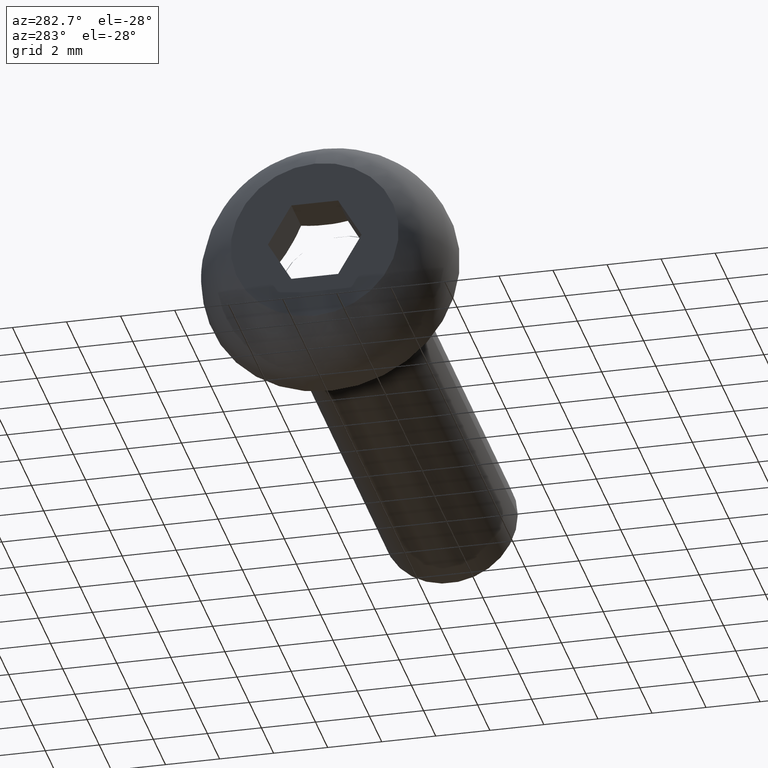
[diagram: clean part render]
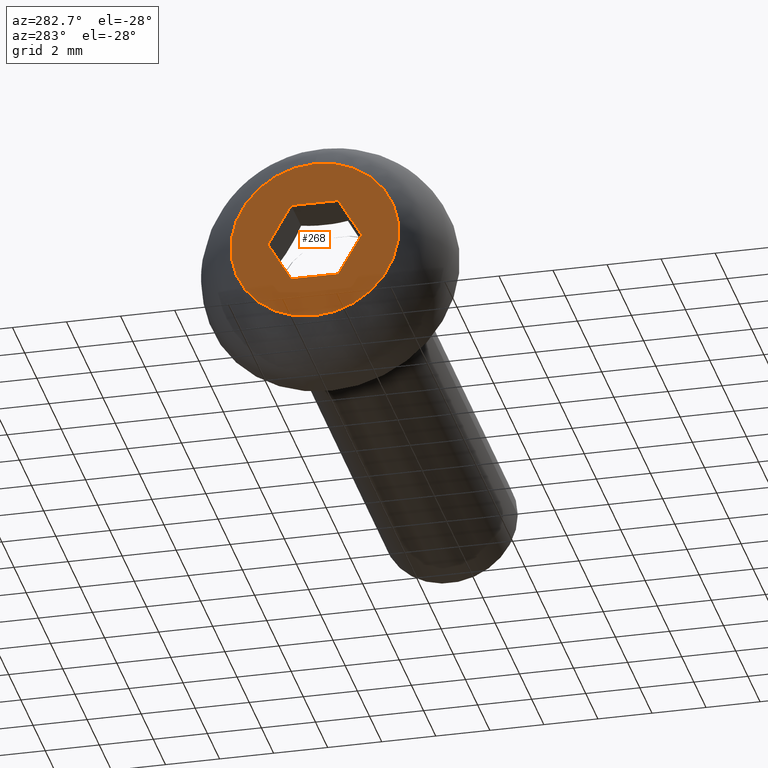
[diagram: same view with one face highlighted and labeled with its STEP entity id]
A machine part, auxiliary view. The second image highlights one B-rep face of the part: STEP entity #268.
In plain terms, the highlighted planar face has unit normal (-1, -0, 0).
Its self-contained STEP definition (entity closure, byte-faithful):
#23=FACE_BOUND('',#73,.T.);
#26=CIRCLE('',#300,3.10929276087974);
#53=FACE_OUTER_BOUND('',#72,.T.);
#72=EDGE_LOOP('',(#235));
#73=EDGE_LOOP('',(#236,#237,#238,#239,#240,#241));
#75=LINE('',#405,#92);
#78=LINE('',#414,#95);
#79=LINE('',#421,#96);
#82=LINE('',#430,#99);
#83=LINE('',#437,#100);
#85=LINE('',#443,#102);
#92=VECTOR('',#325,10.);
#95=VECTOR('',#330,10.);
#96=VECTOR('',#333,10.);
#99=VECTOR('',#338,10.);
#100=VECTOR('',#341,10.);
#102=VECTOR('',#345,10.);
#116=VERTEX_POINT('',#402);
#117=VERTEX_POINT('',#404);
#119=VERTEX_POINT('',#412);
#121=VERTEX_POINT('',#420);
#123=VERTEX_POINT('',#428);
#125=VERTEX_POINT('',#436);
#127=VERTEX_POINT('',#473);
#139=EDGE_CURVE('',#117,#116,#75,.T.);
#143=EDGE_CURVE('',#116,#119,#78,.T.);
#145=EDGE_CURVE('',#121,#117,#79,.T.);
#149=EDGE_CURVE('',#119,#123,#82,.T.);
#151=EDGE_CURVE('',#125,#121,#83,.T.);
#154=EDGE_CURVE('',#123,#125,#85,.T.);
#157=EDGE_CURVE('',#127,#127,#26,.T.);
#235=ORIENTED_EDGE('',*,*,#157,.F.);
#236=ORIENTED_EDGE('',*,*,#154,.T.);
#237=ORIENTED_EDGE('',*,*,#151,.T.);
#238=ORIENTED_EDGE('',*,*,#145,.T.);
#239=ORIENTED_EDGE('',*,*,#139,.T.);
#240=ORIENTED_EDGE('',*,*,#143,.T.);
#241=ORIENTED_EDGE('',*,*,#149,.T.);
#251=PLANE('',#319);
#268=ADVANCED_FACE('',(#53,#23),#251,.T.);
#300=AXIS2_PLACEMENT_3D('',#475,#350,#351);
#319=AXIS2_PLACEMENT_3D('',#508,#393,#394);
#325=DIRECTION('',(4.68338106295776E-17,-0.5,-0.866025403784439));
#330=DIRECTION('',(-4.68338106295776E-17,0.5,-0.866025403784439));
#333=DIRECTION('',(9.36676212591553E-17,-1.,-3.20493781063927E-16));
#338=DIRECTION('',(-9.36676212591553E-17,1.,0.));
#341=DIRECTION('',(4.68338106295777E-17,-0.5,0.866025403784438));
#345=DIRECTION('',(-4.68338106295776E-17,0.5,0.866025403784439));
#350=DIRECTION('center_axis',(1.,9.36676212591553E-17,0.));
#351=DIRECTION('ref_axis',(0.,1.,0.));
#393=DIRECTION('center_axis',(-1.,-9.36676212591553E-17,0.));
#394=DIRECTION('ref_axis',(0.,0.,1.));
#402=CARTESIAN_POINT('',(-2.75,-1.73205080756888,-2.8582503329642E-16));
#404=CARTESIAN_POINT('',(-2.75,-0.866025403784439,1.5));
#405=CARTESIAN_POINT('',(-2.75,-1.51554445662277,0.374999999999999));
#412=CARTESIAN_POINT('',(-2.75,-0.866025403784439,-1.5));
#414=CARTESIAN_POINT('',(-2.75,-1.08253175473055,-1.125));
#420=CARTESIAN_POINT('',(-2.75,0.866025403784438,1.5));
#421=CARTESIAN_POINT('',(-2.75,-0.433012701892221,1.5));
#428=CARTESIAN_POINT('',(-2.75,0.866025403784438,-1.5));
#430=CARTESIAN_POINT('',(-2.75,0.433012701892218,-1.5));
#436=CARTESIAN_POINT('',(-2.75,1.73205080756888,8.24397991328737E-16));
#437=CARTESIAN_POINT('',(-2.75,1.08253175473055,1.125));
#443=CARTESIAN_POINT('',(-2.75,1.51554445662277,-0.375));
#473=CARTESIAN_POINT('',(-2.75,-2.58125479427904E-15,3.10929276087974));
#475=CARTESIAN_POINT('Origin',(-2.75,-2.13093838364578E-15,0.));
#508=CARTESIAN_POINT('Origin',(-2.75,2.45464638043987,0.));